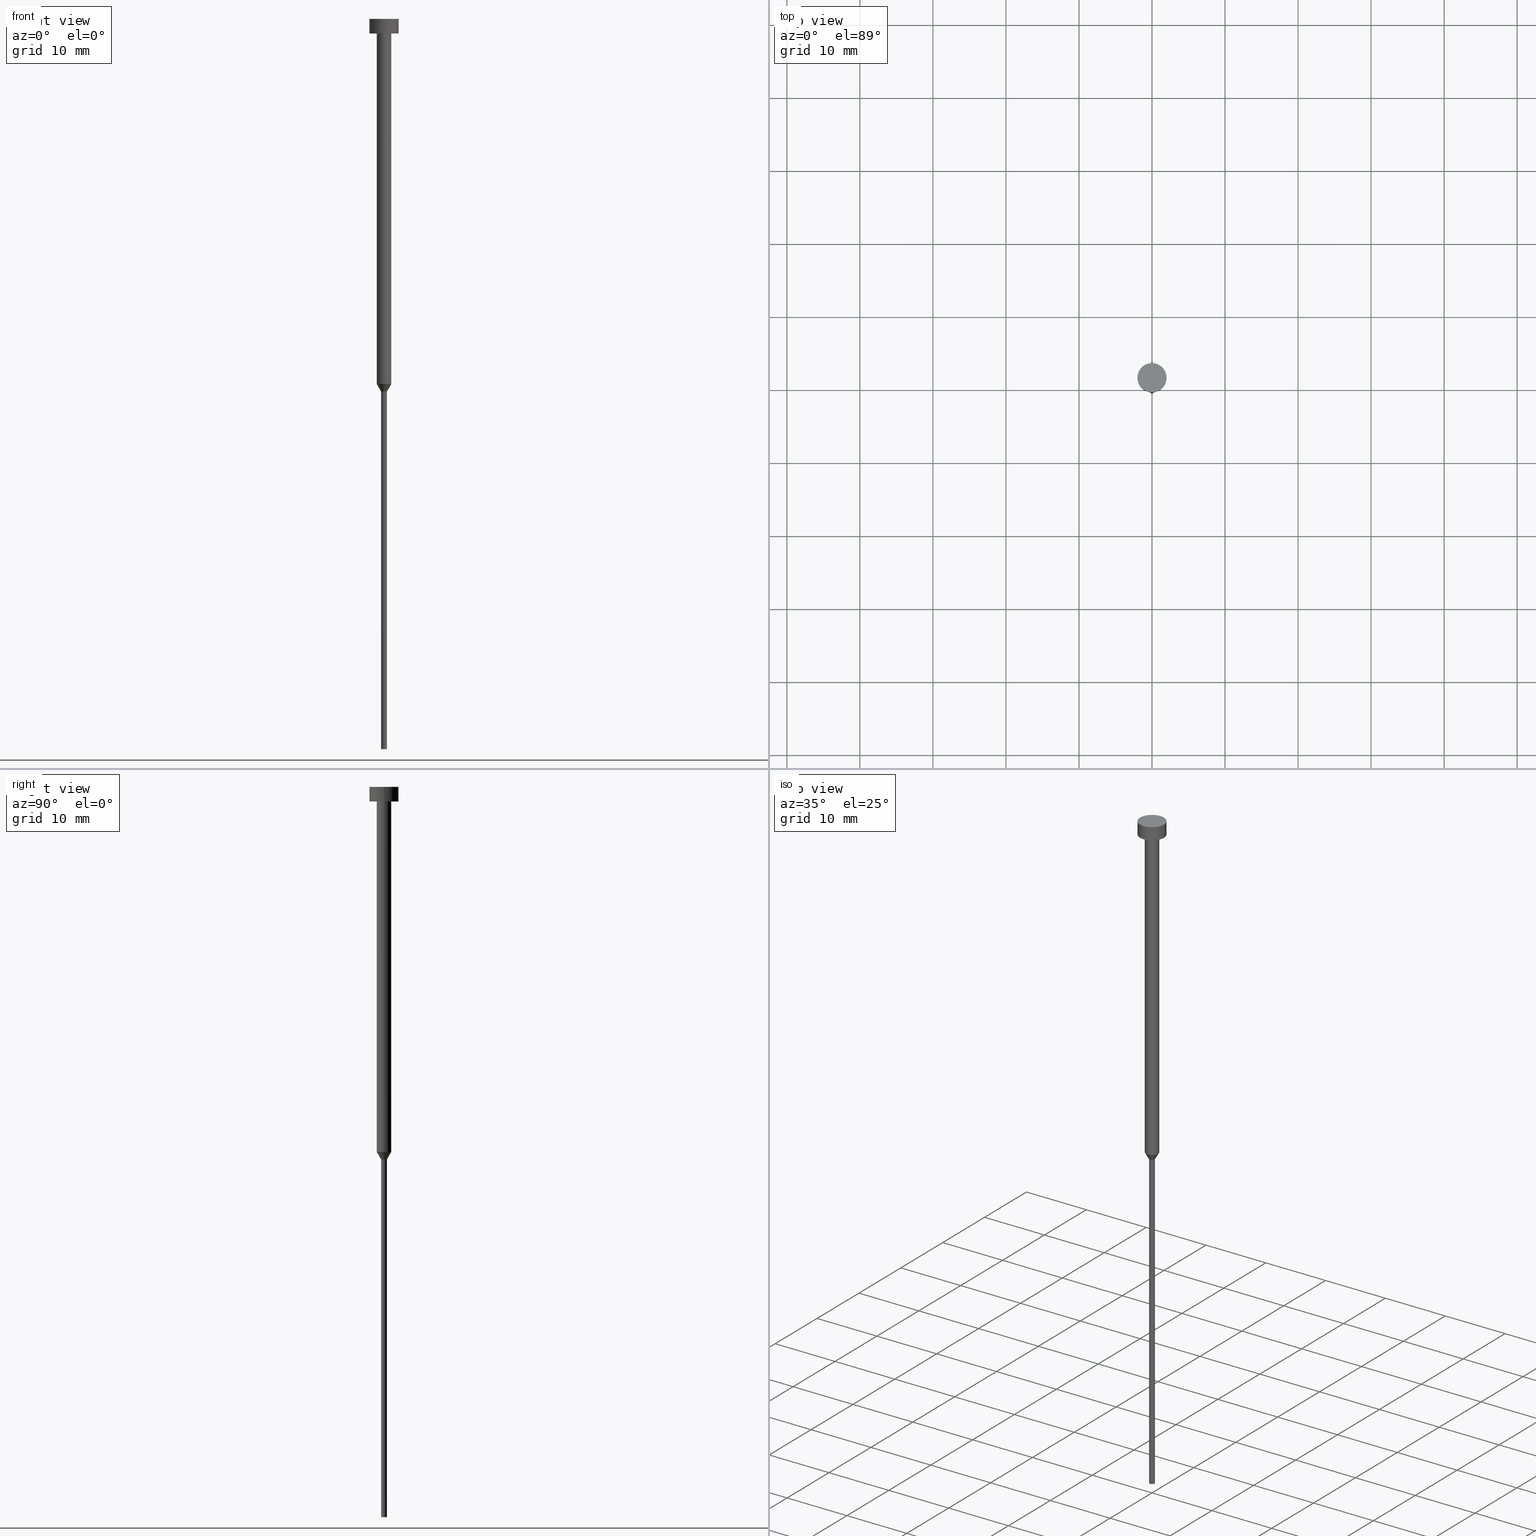
[diagram: canonical four-view strip — front | top / right | iso, engineering-drawing reading convention]
A machine part, canonical four-view strip (front | top / right | iso — engineering-drawing reading convention). The complete STEP part file that produces these views, byte-faithful:
ISO-10303-21;
HEADER;
FILE_DESCRIPTION (( 'STEP AP203' ),
    '1' );
FILE_NAME ('916e.STEP',
    '2025-10-24T08:01:13',
    ( '' ),
    ( '' ),
    'SwSTEP 2.0',
    'SolidWorks 2019',
    '' );
FILE_SCHEMA (( 'CONFIG_CONTROL_DESIGN' ));
ENDSEC;

DATA;
#1 = EDGE_CURVE ( 'NONE', #350, #308, #109, .T. ) ;
#2 = LINE ( 'NONE', #334, #156 ) ;
#3 = CONICAL_SURFACE ( 'NONE', #132, 1.000000000000003109, 0.5235987755983013692 ) ;
#4 = DIRECTION ( 'NONE',  ( 1.000000000000000000, 0.000000000000000000, 0.000000000000000000 ) ) ;
#5 = PERSON_AND_ORGANIZATION_ROLE ( 'design_owner' ) ;
#6 = CARTESIAN_POINT ( 'NONE',  ( 2.000000000000000000, 0.000000000000000000, -2.000000000000000444 ) ) ;
#7 = CC_DESIGN_PERSON_AND_ORGANIZATION_ASSIGNMENT ( #86, #283, ( #342 ) ) ;
#8 = ORIENTED_EDGE ( 'NONE', *, *, #65, .T. ) ;
#9 = PERSON_AND_ORGANIZATION_ROLE ( 'creator' ) ;
#10 = ORIENTED_EDGE ( 'NONE', *, *, #255, .F. ) ;
#11 = CARTESIAN_POINT ( 'NONE',  ( 0.000000000000000000, 0.000000000000000000, 0.000000000000000000 ) ) ;
#12 = DIRECTION ( 'NONE',  ( 0.5000000000000021094, 0.000000000000000000, 0.8660254037844373753 ) ) ;
#13 = ADVANCED_FACE ( 'NONE', ( #190 ), #62, .T. ) ;
#14 = PERSON_AND_ORGANIZATION ( #41, #17 ) ;
#15 = CARTESIAN_POINT ( 'NONE',  ( -2.000000000000000000, 2.449293598294706414E-16, -2.449293598294705921E-16 ) ) ;
#16 = DIRECTION ( 'NONE',  ( 1.000000000000000000, 0.000000000000000000, 0.000000000000000000 ) ) ;
#17 = ORGANIZATION ( 'NEUR�EN�', 'NEUR�EN�', '' ) ;
#18 = EDGE_LOOP ( 'NONE', ( #24, #126, #251, #349 ) ) ;
#19 = EDGE_CURVE ( 'NONE', #308, #204, #194, .T. ) ;
#20 = VERTEX_POINT ( 'NONE', #36 ) ;
#21 = FACE_OUTER_BOUND ( 'NONE', #160, .T. ) ;
#22 = CALENDAR_DATE ( 2025, 24, 10 ) ;
#23 = AXIS2_PLACEMENT_3D ( 'NONE', #195, #226, #147 ) ;
#24 = ORIENTED_EDGE ( 'NONE', *, *, #247, .F. ) ;
#25 = COORDINATED_UNIVERSAL_TIME_OFFSET ( 1, 0, .AHEAD. ) ;
#26 = CARTESIAN_POINT ( 'NONE',  ( 0.000000000000000000, 0.000000000000000000, -100.0000000000000000 ) ) ;
#27 = EDGE_CURVE ( 'NONE', #20, #211, #28, .T. ) ;
#28 = LINE ( 'NONE', #220, #74 ) ;
#29 =( LENGTH_UNIT ( ) NAMED_UNIT ( * ) SI_UNIT ( .MILLI., .METRE. ) );
#30 = CARTESIAN_POINT ( 'NONE',  ( 0.000000000000000000, 0.000000000000000000, -100.0000000000000000 ) ) ;
#31 = DIRECTION ( 'NONE',  ( 0.000000000000000000, 0.000000000000000000, 1.000000000000000000 ) ) ;
#32 = DIRECTION ( 'NONE',  ( -0.000000000000000000, -0.000000000000000000, 1.000000000000000000 ) ) ;
#33 = ORIENTED_EDGE ( 'NONE', *, *, #202, .T. ) ;
#34 = MANIFOLD_SOLID_BREP ( 'Rotovat1', #203 ) ;
#35 = CIRCLE ( 'NONE', #298, 0.3999999999999999667 ) ;
#36 = CARTESIAN_POINT ( 'NONE',  ( -2.000000000000000000, 2.449293598294706414E-16, -2.000000000000000444 ) ) ;
#37 = AXIS2_PLACEMENT_3D ( 'NONE', #312, #281, #60 ) ;
#38 = DIRECTION ( 'NONE',  ( -0.000000000000000000, -0.000000000000000000, 1.000000000000000000 ) ) ;
#39 = APPROVAL_STATUS ( 'not_yet_approved' ) ;
#40 = DIRECTION ( 'NONE',  ( -0.000000000000000000, -0.000000000000000000, 1.000000000000000000 ) ) ;
#41 = PERSON ( 'NEUR�EN�', 'NEUR�EN�', 'NEUR�EN�', ('NEUR�EN�'), ('NEUR�EN�'), ('NEUR�EN�') ) ;
#42 = LINE ( 'NONE', #258, #221 ) ;
#43 = DIRECTION ( 'NONE',  ( -0.000000000000000000, -0.000000000000000000, 1.000000000000000000 ) ) ;
#44 = DESIGN_CONTEXT ( 'detailed design', #46, 'design' ) ;
#45 = CYLINDRICAL_SURFACE ( 'NONE', #114, 2.000000000000000000 ) ;
#46 = APPLICATION_CONTEXT ( 'configuration controlled 3d designs of mechanical parts and assemblies' ) ;
#47 = PRODUCT_DEFINITION_SHAPE ( 'NONE', 'NONE',  #314 ) ;
#48 = PLANE ( 'NONE',  #355 ) ;
#49 = CIRCLE ( 'NONE', #148, 1.000000000000003109 ) ;
#50 = AXIS2_PLACEMENT_3D ( 'NONE', #30, #136, #4 ) ;
#51 = CC_DESIGN_PERSON_AND_ORGANIZATION_ASSIGNMENT ( #137, #5, ( #134 ) ) ;
#52 = ORIENTED_EDGE ( 'NONE', *, *, #83, .T. ) ;
#53 = PERSON_AND_ORGANIZATION ( #41, #17 ) ;
#54 = ORIENTED_EDGE ( 'NONE', *, *, #282, .F. ) ;
#55 = LOCAL_TIME ( 10, 1, 13.00000000000000000, #81 ) ;
#56 = CIRCLE ( 'NONE', #318, 0.4000000000000000222 ) ;
#57 = ADVANCED_FACE ( 'NONE', ( #223 ), #279, .T. ) ;
#58 = CARTESIAN_POINT ( 'NONE',  ( 1.000000000000003109, 0.000000000000000000, -50.00000000000000000 ) ) ;
#59 = CIRCLE ( 'NONE', #128, 1.000000000000003109 ) ;
#60 = DIRECTION ( 'NONE',  ( 1.000000000000000000, 0.000000000000000000, 0.000000000000000000 ) ) ;
#61 = DATE_AND_TIME ( #254, #232 ) ;
#62 = CYLINDRICAL_SURFACE ( 'NONE', #319, 1.000000000000003331 ) ;
#63 = PERSON_AND_ORGANIZATION_ROLE ( 'classification_officer' ) ;
#64 = DIRECTION ( 'NONE',  ( -0.000000000000000000, -0.000000000000000000, 1.000000000000000000 ) ) ;
#65 = EDGE_CURVE ( 'NONE', #124, #204, #192, .T. ) ;
#66 = APPROVAL_ROLE ( '' ) ;
#67 = CARTESIAN_POINT ( 'NONE',  ( 0.000000000000000000, 0.000000000000000000, -1.224646799147352961E-16 ) ) ;
#68 = DIRECTION ( 'NONE',  ( 1.000000000000000000, 0.000000000000000000, 0.000000000000000000 ) ) ;
#69 = EDGE_CURVE ( 'NONE', #129, #353, #2, .T. ) ;
#70 = CARTESIAN_POINT ( 'NONE',  ( 1.000000000000003553, 0.000000000000000000, -2.000000000000000444 ) ) ;
#71 = CIRCLE ( 'NONE', #299, 2.000000000000000000 ) ;
#72 = AXIS2_PLACEMENT_3D ( 'NONE', #67, #295, #268 ) ;
#73 = DIRECTION ( 'NONE',  ( 1.000000000000000000, 0.000000000000000000, 0.000000000000000000 ) ) ;
#74 = VECTOR ( 'NONE', #32, 1000.000000000000000 ) ;
#75 = ORIENTED_EDGE ( 'NONE', *, *, #164, .T. ) ;
#76 = ORIENTED_EDGE ( 'NONE', *, *, #172, .T. ) ;
#77 = CARTESIAN_POINT ( 'NONE',  ( 0.000000000000000000, -2.000000000000000000, -2.000000000000000444 ) ) ;
#78 = APPROVAL_PERSON_ORGANIZATION ( #53, #182, #168 ) ;
#79 = DIRECTION ( 'NONE',  ( 1.000000000000000000, 0.000000000000000000, 0.000000000000000000 ) ) ;
#80 = ORIENTED_EDGE ( 'NONE', *, *, #146, .T. ) ;
#81 = COORDINATED_UNIVERSAL_TIME_OFFSET ( 1, 0, .AHEAD. ) ;
#82 = CARTESIAN_POINT ( 'NONE',  ( -0.3999999999999999667, 4.898587196589412459E-17, -51.03923048454132783 ) ) ;
#83 = EDGE_CURVE ( 'NONE', #124, #350, #59, .T. ) ;
#84 = DIRECTION ( 'NONE',  ( 1.000000000000000000, 0.000000000000000000, 0.000000000000000000 ) ) ;
#85 = DIRECTION ( 'NONE',  ( 1.000000000000000000, 0.000000000000000000, 0.000000000000000000 ) ) ;
#86 = PERSON_AND_ORGANIZATION ( #41, #17 ) ;
#87 = VECTOR ( 'NONE', #64, 1000.000000000000000 ) ;
#88 = DIRECTION ( 'NONE',  ( 1.000000000000000000, 0.000000000000000000, 0.000000000000000000 ) ) ;
#89 = ORIENTED_EDGE ( 'NONE', *, *, #164, .F. ) ;
#90 = ORIENTED_EDGE ( 'NONE', *, *, #335, .T. ) ;
#91 = LOCAL_TIME ( 10, 1, 13.00000000000000000, #278 ) ;
#92 = DIRECTION ( 'NONE',  ( -0.000000000000000000, -0.000000000000000000, 1.000000000000000000 ) ) ;
#93 = CARTESIAN_POINT ( 'NONE',  ( 0.000000000000000000, 0.000000000000000000, -50.00000000000000000 ) ) ;
#94 = CARTESIAN_POINT ( 'NONE',  ( 0.000000000000000000, 0.000000000000000000, -2.449293598294705921E-16 ) ) ;
#95 = LOCAL_TIME ( 10, 1, 13.00000000000000000, #25 ) ;
#96 = CYLINDRICAL_SURFACE ( 'NONE', #252, 0.3999999999999999667 ) ;
#97 = AXIS2_PLACEMENT_3D ( 'NONE', #277, #139, #249 ) ;
#98 = ORIENTED_EDGE ( 'NONE', *, *, #242, .T. ) ;
#99 = CC_DESIGN_DATE_AND_TIME_ASSIGNMENT ( #224, #250, ( #316 ) ) ;
#100 = EDGE_LOOP ( 'NONE', ( #98, #196 ) ) ;
#101 = AXIS2_PLACEMENT_3D ( 'NONE', #265, #150, #256 ) ;
#102 = CYLINDRICAL_SURFACE ( 'NONE', #208, 0.3999999999999999667 ) ;
#103 = CIRCLE ( 'NONE', #97, 0.3999999999999999667 ) ;
#104 = VERTEX_POINT ( 'NONE', #303 ) ;
#105 = APPROVAL_DATE_TIME ( #330, #348 ) ;
#106 = DIRECTION ( 'NONE',  ( 0.000000000000000000, 0.000000000000000000, -1.000000000000000000 ) ) ;
#107 = APPLICATION_PROTOCOL_DEFINITION ( 'international standard', 'config_control_design', 1994, #46 ) ;
#108 = VERTEX_POINT ( 'NONE', #82 ) ;
#109 = LINE ( 'NONE', #141, #291 ) ;
#110 = APPROVAL_STATUS ( 'not_yet_approved' ) ;
#111 = CC_DESIGN_APPROVAL ( #182, ( #342 ) ) ;
#112 = ORIENTED_EDGE ( 'NONE', *, *, #83, .F. ) ;
#113 = DATE_AND_TIME ( #171, #91 ) ;
#114 = AXIS2_PLACEMENT_3D ( 'NONE', #207, #201, #152 ) ;
#115 = ORIENTED_EDGE ( 'NONE', *, *, #135, .F. ) ;
#116 = ORIENTED_EDGE ( 'NONE', *, *, #65, .F. ) ;
#117 = CARTESIAN_POINT ( 'NONE',  ( -0.4000000000000000777, 4.898587196589413692E-17, -100.0000000000000000 ) ) ;
#118 = CC_DESIGN_APPROVAL ( #206, ( #316 ) ) ;
#119 = CARTESIAN_POINT ( 'NONE',  ( 0.000000000000000000, 0.000000000000000000, -100.0000000000000000 ) ) ;
#120 = FACE_OUTER_BOUND ( 'NONE', #218, .T. ) ;
#121 = DIRECTION ( 'NONE',  ( -0.000000000000000000, -0.000000000000000000, 1.000000000000000000 ) ) ;
#122 = EDGE_CURVE ( 'NONE', #244, #292, #339, .T. ) ;
#123 = ORIENTED_EDGE ( 'NONE', *, *, #351, .F. ) ;
#124 = VERTEX_POINT ( 'NONE', #58 ) ;
#125 = DIRECTION ( 'NONE',  ( 1.000000000000000000, 0.000000000000000000, 0.000000000000000000 ) ) ;
#126 = ORIENTED_EDGE ( 'NONE', *, *, #177, .T. ) ;
#127 = EDGE_CURVE ( 'NONE', #104, #108, #103, .T. ) ;
#128 = AXIS2_PLACEMENT_3D ( 'NONE', #338, #307, #88 ) ;
#129 = VERTEX_POINT ( 'NONE', #6 ) ;
#130 = CALENDAR_DATE ( 2025, 24, 10 ) ;
#131 = DIRECTION ( 'NONE',  ( -1.000000000000000000, 0.000000000000000000, -0.000000000000000000 ) ) ;
#132 = AXIS2_PLACEMENT_3D ( 'NONE', #93, #286, #175 ) ;
#133 = DIRECTION ( 'NONE',  ( 1.000000000000000000, 0.000000000000000000, 0.000000000000000000 ) ) ;
#134 = PRODUCT ( '916e', '916e', '', ( #191 ) ) ;
#135 = EDGE_CURVE ( 'NONE', #211, #353, #176, .T. ) ;
#136 = DIRECTION ( 'NONE',  ( -0.000000000000000000, -0.000000000000000000, 1.000000000000000000 ) ) ;
#137 = PERSON_AND_ORGANIZATION ( #41, #17 ) ;
#138 = APPLICATION_CONTEXT ( 'configuration controlled 3d designs of mechanical parts and assemblies' ) ;
#139 = DIRECTION ( 'NONE',  ( -0.000000000000000000, -0.000000000000000000, 1.000000000000000000 ) ) ;
#140 = LOCAL_TIME ( 10, 1, 13.00000000000000000, #219 ) ;
#141 = CARTESIAN_POINT ( 'NONE',  ( -1.000000000000003331, 1.224646799147357151E-16, 0.000000000000000000 ) ) ;
#142 = VECTOR ( 'NONE', #317, 1000.000000000000227 ) ;
#143 = EDGE_LOOP ( 'NONE', ( #154, #76, #8, #310 ) ) ;
#144 = CYLINDRICAL_SURFACE ( 'NONE', #166, 1.000000000000003331 ) ;
#145 = APPROVAL_DATE_TIME ( #113, #182 ) ;
#146 = EDGE_CURVE ( 'NONE', #104, #124, #42, .T. ) ;
#147 = DIRECTION ( 'NONE',  ( 1.000000000000000000, 0.000000000000000000, 0.000000000000000000 ) ) ;
#148 = AXIS2_PLACEMENT_3D ( 'NONE', #288, #40, #343 ) ;
#149 = FACE_OUTER_BOUND ( 'NONE', #300, .T. ) ;
#150 = DIRECTION ( 'NONE',  ( -0.000000000000000000, -0.000000000000000000, 1.000000000000000000 ) ) ;
#151 = CC_DESIGN_DATE_AND_TIME_ASSIGNMENT ( #241, #302, ( #314 ) ) ;
#152 = DIRECTION ( 'NONE',  ( 1.000000000000000000, 0.000000000000000000, 0.000000000000000000 ) ) ;
#153 = ORIENTED_EDGE ( 'NONE', *, *, #127, .F. ) ;
#154 = ORIENTED_EDGE ( 'NONE', *, *, #1, .F. ) ;
#155 = PERSON_AND_ORGANIZATION ( #41, #17 ) ;
#156 = VECTOR ( 'NONE', #216, 1000.000000000000000 ) ;
#157 =( NAMED_UNIT ( * ) SI_UNIT ( $, .STERADIAN. ) SOLID_ANGLE_UNIT ( ) );
#158 = CARTESIAN_POINT ( 'NONE',  ( 1.000000000000003331, 0.000000000000000000, 0.000000000000000000 ) ) ;
#159 = ADVANCED_FACE ( 'NONE', ( #21 ), #45, .T. ) ;
#160 = EDGE_LOOP ( 'NONE', ( #75, #326, #297, #222 ) ) ;
#161 = VECTOR ( 'NONE', #272, 1000.000000000000000 ) ;
#162 = ORIENTED_EDGE ( 'NONE', *, *, #27, .F. ) ;
#163 = DIRECTION ( 'NONE',  ( -0.000000000000000000, -0.000000000000000000, 1.000000000000000000 ) ) ;
#164 = EDGE_CURVE ( 'NONE', #129, #20, #71, .T. ) ;
#165 = PERSON_AND_ORGANIZATION ( #41, #17 ) ;
#166 = AXIS2_PLACEMENT_3D ( 'NONE', #11, #92, #68 ) ;
#167 = EDGE_LOOP ( 'NONE', ( #234, #33, #112, #183 ) ) ;
#168 = APPROVAL_ROLE ( '' ) ;
#169 = DIRECTION ( 'NONE',  ( -0.000000000000000000, -0.000000000000000000, 1.000000000000000000 ) ) ;
#170 = DIRECTION ( 'NONE',  ( 1.000000000000000000, 0.000000000000000000, 0.000000000000000000 ) ) ;
#171 = CALENDAR_DATE ( 2025, 24, 10 ) ;
#172 = EDGE_CURVE ( 'NONE', #350, #124, #49, .T. ) ;
#173 = FACE_OUTER_BOUND ( 'NONE', #100, .T. ) ;
#174 = AXIS2_PLACEMENT_3D ( 'NONE', #315, #38, #284 ) ;
#175 = DIRECTION ( 'NONE',  ( 1.000000000000000000, 0.000000000000000000, 0.000000000000000000 ) ) ;
#176 = CIRCLE ( 'NONE', #23, 2.000000000000000000 ) ;
#177 = EDGE_CURVE ( 'NONE', #292, #244, #56, .T. ) ;
#178 = CIRCLE ( 'NONE', #174, 2.000000000000000000 ) ;
#179 = ORIENTED_EDGE ( 'NONE', *, *, #19, .T. ) ;
#180 = ADVANCED_BREP_SHAPE_REPRESENTATION ( '916e', ( #34, #346 ), #322 ) ;
#181 = LINE ( 'NONE', #293, #287 ) ;
#182 = APPROVAL ( #354, 'NEUR�EN�' ) ;
#183 = ORIENTED_EDGE ( 'NONE', *, *, #146, .F. ) ;
#184 =( NAMED_UNIT ( * ) PLANE_ANGLE_UNIT ( ) SI_UNIT ( $, .RADIAN. ) );
#185 = ORIENTED_EDGE ( 'NONE', *, *, #172, .F. ) ;
#186 = AXIS2_PLACEMENT_3D ( 'NONE', #77, #214, #331 ) ;
#187 = CARTESIAN_POINT ( 'NONE',  ( 2.000000000000000000, 0.000000000000000000, -2.449293598294705921E-16 ) ) ;
#188 = ADVANCED_FACE ( 'NONE', ( #149 ), #96, .T. ) ;
#189 = PERSON_AND_ORGANIZATION ( #41, #17 ) ;
#190 = FACE_OUTER_BOUND ( 'NONE', #143, .T. ) ;
#191 = MECHANICAL_CONTEXT ( 'NONE', #138, 'mechanical' ) ;
#192 = LINE ( 'NONE', #158, #161 ) ;
#193 = SHAPE_DEFINITION_REPRESENTATION ( #47, #180 ) ;
#194 = CIRCLE ( 'NONE', #37, 1.000000000000003553 ) ;
#195 = CARTESIAN_POINT ( 'NONE',  ( 0.000000000000000000, 0.000000000000000000, -2.449293598294705921E-16 ) ) ;
#196 = ORIENTED_EDGE ( 'NONE', *, *, #135, .T. ) ;
#197 = CARTESIAN_POINT ( 'NONE',  ( 0.000000000000000000, 0.000000000000000000, 0.000000000000000000 ) ) ;
#198 = SECURITY_CLASSIFICATION_LEVEL ( 'unclassified' ) ;
#199 = FACE_OUTER_BOUND ( 'NONE', #18, .T. ) ;
#200 = CARTESIAN_POINT ( 'NONE',  ( -1.000000000000003109, 1.224646799147356905E-16, -50.00000000000000000 ) ) ;
#201 = DIRECTION ( 'NONE',  ( -0.000000000000000000, -0.000000000000000000, 1.000000000000000000 ) ) ;
#202 = EDGE_CURVE ( 'NONE', #108, #350, #345, .T. ) ;
#203 = CLOSED_SHELL ( 'NONE', ( #159, #290, #274, #188, #311, #227, #235, #13, #328, #57, #305 ) ) ;
#204 = VERTEX_POINT ( 'NONE', #70 ) ;
#205 = AXIS2_PLACEMENT_3D ( 'NONE', #276, #245, #79 ) ;
#206 = APPROVAL ( #39, 'NEUR�EN�' ) ;
#207 = CARTESIAN_POINT ( 'NONE',  ( 0.000000000000000000, 0.000000000000000000, 0.000000000000000000 ) ) ;
#208 = AXIS2_PLACEMENT_3D ( 'NONE', #231, #285, #16 ) ;
#209 = ORIENTED_EDGE ( 'NONE', *, *, #122, .F. ) ;
#210 = CARTESIAN_POINT ( 'NONE',  ( 0.4000000000000000222, 0.000000000000000000, -100.0000000000000000 ) ) ;
#211 = VERTEX_POINT ( 'NONE', #15 ) ;
#212 = PERSON_AND_ORGANIZATION_ROLE ( 'creator' ) ;
#213 = APPROVAL_PERSON_ORGANIZATION ( #165, #206, #66 ) ;
#214 = DIRECTION ( 'NONE',  ( 0.000000000000000000, 0.000000000000000000, -1.000000000000000000 ) ) ;
#215 = CC_DESIGN_PERSON_AND_ORGANIZATION_ASSIGNMENT ( #189, #212, ( #314 ) ) ;
#216 = DIRECTION ( 'NONE',  ( -0.000000000000000000, -0.000000000000000000, 1.000000000000000000 ) ) ;
#217 = APPLICATION_PROTOCOL_DEFINITION ( 'international standard', 'config_control_design', 1994, #138 ) ;
#218 = EDGE_LOOP ( 'NONE', ( #233, #90, #80, #185 ) ) ;
#219 = COORDINATED_UNIVERSAL_TIME_OFFSET ( 1, 0, .AHEAD. ) ;
#220 = CARTESIAN_POINT ( 'NONE',  ( -2.000000000000000000, 2.449293598294706414E-16, 0.000000000000000000 ) ) ;
#221 = VECTOR ( 'NONE', #12, 1000.000000000000227 ) ;
#222 = ORIENTED_EDGE ( 'NONE', *, *, #69, .F. ) ;
#223 = FACE_OUTER_BOUND ( 'NONE', #275, .T. ) ;
#224 = DATE_AND_TIME ( #228, #140 ) ;
#225 = APPROVAL_PERSON_ORGANIZATION ( #155, #348, #333 ) ;
#226 = DIRECTION ( 'NONE',  ( -0.000000000000000000, -0.000000000000000000, 1.000000000000000000 ) ) ;
#227 = ADVANCED_FACE ( 'NONE', ( #199 ), #102, .T. ) ;
#228 = CALENDAR_DATE ( 2025, 24, 10 ) ;
#229 = DIRECTION ( 'NONE',  ( -0.000000000000000000, -0.000000000000000000, 1.000000000000000000 ) ) ;
#230 = DIRECTION ( 'NONE',  ( 1.000000000000000000, 0.000000000000000000, 0.000000000000000000 ) ) ;
#231 = CARTESIAN_POINT ( 'NONE',  ( 0.000000000000000000, 0.000000000000000000, 0.000000000000000000 ) ) ;
#232 = LOCAL_TIME ( 10, 1, 13.00000000000000000, #309 ) ;
#233 = ORIENTED_EDGE ( 'NONE', *, *, #202, .F. ) ;
#234 = ORIENTED_EDGE ( 'NONE', *, *, #127, .T. ) ;
#235 = ADVANCED_FACE ( 'NONE', ( #120 ), #259, .T. ) ;
#236 = CARTESIAN_POINT ( 'NONE',  ( 0.3999999999999999667, 0.000000000000000000, 0.000000000000000000 ) ) ;
#237 = EDGE_LOOP ( 'NONE', ( #89, #54 ) ) ;
#238 = AXIS2_PLACEMENT_3D ( 'NONE', #341, #246, #133 ) ;
#239 = CARTESIAN_POINT ( 'NONE',  ( 0.000000000000000000, 0.000000000000000000, 0.000000000000000000 ) ) ;
#240 = ORIENTED_EDGE ( 'NONE', *, *, #351, .T. ) ;
#241 = DATE_AND_TIME ( #130, #95 ) ;
#242 = EDGE_CURVE ( 'NONE', #353, #211, #324, .T. ) ;
#243 = PLANE ( 'NONE',  #186 ) ;
#244 = VERTEX_POINT ( 'NONE', #210 ) ;
#245 = DIRECTION ( 'NONE',  ( -0.000000000000000000, -0.000000000000000000, 1.000000000000000000 ) ) ;
#246 = DIRECTION ( 'NONE',  ( -0.000000000000000000, -0.000000000000000000, 1.000000000000000000 ) ) ;
#247 = EDGE_CURVE ( 'NONE', #292, #108, #181, .T. ) ;
#248 = CARTESIAN_POINT ( 'NONE',  ( -1.000000000000003109, 1.224646799147356905E-16, -50.00000000000000000 ) ) ;
#249 = DIRECTION ( 'NONE',  ( 1.000000000000000000, 0.000000000000000000, 0.000000000000000000 ) ) ;
#250 = DATE_TIME_ROLE ( 'classification_date' ) ;
#251 = ORIENTED_EDGE ( 'NONE', *, *, #255, .T. ) ;
#252 = AXIS2_PLACEMENT_3D ( 'NONE', #261, #43, #73 ) ;
#253 = EDGE_LOOP ( 'NONE', ( #209, #263 ) ) ;
#254 = CALENDAR_DATE ( 2025, 24, 10 ) ;
#255 = EDGE_CURVE ( 'NONE', #244, #104, #344, .T. ) ;
#256 = DIRECTION ( 'NONE',  ( 1.000000000000000000, 0.000000000000000000, 0.000000000000000000 ) ) ;
#257 = APPROVAL_DATE_TIME ( #61, #206 ) ;
#258 = CARTESIAN_POINT ( 'NONE',  ( 1.000000000000003109, 0.000000000000000000, -50.00000000000000000 ) ) ;
#259 = CONICAL_SURFACE ( 'NONE', #101, 1.000000000000003109, 0.5235987755983013692 ) ;
#260 = PERSON_AND_ORGANIZATION ( #41, #17 ) ;
#261 = CARTESIAN_POINT ( 'NONE',  ( 0.000000000000000000, 0.000000000000000000, 0.000000000000000000 ) ) ;
#262 = FACE_OUTER_BOUND ( 'NONE', #167, .T. ) ;
#263 = ORIENTED_EDGE ( 'NONE', *, *, #177, .F. ) ;
#264 = PRODUCT_RELATED_PRODUCT_CATEGORY ( 'detail', '', ( #134 ) ) ;
#265 = CARTESIAN_POINT ( 'NONE',  ( 0.000000000000000000, 0.000000000000000000, -50.00000000000000000 ) ) ;
#266 = ORIENTED_EDGE ( 'NONE', *, *, #282, .T. ) ;
#267 = CC_DESIGN_APPROVAL ( #348, ( #314 ) ) ;
#268 = DIRECTION ( 'NONE',  ( 1.000000000000000000, 0.000000000000000000, 0.000000000000000000 ) ) ;
#269 = ORIENTED_EDGE ( 'NONE', *, *, #1, .T. ) ;
#270 = CARTESIAN_POINT ( 'NONE',  ( 0.000000000000000000, 0.000000000000000000, -51.03923048454132783 ) ) ;
#271 = FACE_OUTER_BOUND ( 'NONE', #237, .T. ) ;
#272 = DIRECTION ( 'NONE',  ( -0.000000000000000000, -0.000000000000000000, 1.000000000000000000 ) ) ;
#273 = FACE_BOUND ( 'NONE', #294, .T. ) ;
#274 = ADVANCED_FACE ( 'NONE', ( #262 ), #3, .T. ) ;
#275 = EDGE_LOOP ( 'NONE', ( #162, #266, #329, #115 ) ) ;
#276 = CARTESIAN_POINT ( 'NONE',  ( 0.000000000000000000, 0.000000000000000000, -2.000000000000000444 ) ) ;
#277 = CARTESIAN_POINT ( 'NONE',  ( 0.000000000000000000, 0.000000000000000000, -51.03923048454132783 ) ) ;
#278 = COORDINATED_UNIVERSAL_TIME_OFFSET ( 1, 0, .AHEAD. ) ;
#279 = CYLINDRICAL_SURFACE ( 'NONE', #238, 2.000000000000000000 ) ;
#280 = CC_DESIGN_SECURITY_CLASSIFICATION ( #316, ( #342 ) ) ;
#281 = DIRECTION ( 'NONE',  ( -0.000000000000000000, -0.000000000000000000, 1.000000000000000000 ) ) ;
#282 = EDGE_CURVE ( 'NONE', #20, #129, #178, .T. ) ;
#283 = PERSON_AND_ORGANIZATION_ROLE ( 'design_supplier' ) ;
#284 = DIRECTION ( 'NONE',  ( 1.000000000000000000, 0.000000000000000000, 0.000000000000000000 ) ) ;
#285 = DIRECTION ( 'NONE',  ( -0.000000000000000000, -0.000000000000000000, 1.000000000000000000 ) ) ;
#286 = DIRECTION ( 'NONE',  ( -0.000000000000000000, -0.000000000000000000, 1.000000000000000000 ) ) ;
#287 = VECTOR ( 'NONE', #229, 1000.000000000000000 ) ;
#288 = CARTESIAN_POINT ( 'NONE',  ( 0.000000000000000000, 0.000000000000000000, -50.00000000000000000 ) ) ;
#289 = CIRCLE ( 'NONE', #205, 1.000000000000003553 ) ;
#290 = ADVANCED_FACE ( 'NONE', ( #347 ), #144, .T. ) ;
#291 = VECTOR ( 'NONE', #163, 1000.000000000000000 ) ;
#292 = VERTEX_POINT ( 'NONE', #117 ) ;
#293 = CARTESIAN_POINT ( 'NONE',  ( -0.3999999999999999667, 4.898587196589412459E-17, 0.000000000000000000 ) ) ;
#294 = EDGE_LOOP ( 'NONE', ( #240, #179 ) ) ;
#295 = DIRECTION ( 'NONE',  ( 0.000000000000000000, -0.000000000000000000, 1.000000000000000000 ) ) ;
#296 = CC_DESIGN_PERSON_AND_ORGANIZATION_ASSIGNMENT ( #260, #63, ( #316 ) ) ;
#297 = ORIENTED_EDGE ( 'NONE', *, *, #242, .F. ) ;
#298 = AXIS2_PLACEMENT_3D ( 'NONE', #270, #327, #84 ) ;
#299 = AXIS2_PLACEMENT_3D ( 'NONE', #352, #121, #170 ) ;
#300 = EDGE_LOOP ( 'NONE', ( #340, #332, #153, #10 ) ) ;
#301 = CARTESIAN_POINT ( 'NONE',  ( -1.000000000000003553, 1.224646799147357398E-16, -2.000000000000000444 ) ) ;
#302 = DATE_TIME_ROLE ( 'creation_date' ) ;
#303 = CARTESIAN_POINT ( 'NONE',  ( 0.3999999999999999667, 0.000000000000000000, -51.03923048454132783 ) ) ;
#304 = DIRECTION ( 'NONE',  ( 1.000000000000000000, 0.000000000000000000, 0.000000000000000000 ) ) ;
#305 = ADVANCED_FACE ( 'NONE', ( #173 ), #325, .T. ) ;
#306 = AXIS2_PLACEMENT_3D ( 'NONE', #94, #313, #125 ) ;
#307 = DIRECTION ( 'NONE',  ( -0.000000000000000000, -0.000000000000000000, 1.000000000000000000 ) ) ;
#308 = VERTEX_POINT ( 'NONE', #301 ) ;
#309 = COORDINATED_UNIVERSAL_TIME_OFFSET ( 1, 0, .AHEAD. ) ;
#310 = ORIENTED_EDGE ( 'NONE', *, *, #19, .F. ) ;
#311 = ADVANCED_FACE ( 'NONE', ( #336 ), #48, .T. ) ;
#312 = CARTESIAN_POINT ( 'NONE',  ( 0.000000000000000000, 0.000000000000000000, -2.000000000000000444 ) ) ;
#313 = DIRECTION ( 'NONE',  ( -0.000000000000000000, -0.000000000000000000, 1.000000000000000000 ) ) ;
#314 = PRODUCT_DEFINITION ( 'NEZN�M�', '', #342, #44 ) ;
#315 = CARTESIAN_POINT ( 'NONE',  ( 0.000000000000000000, 0.000000000000000000, -2.000000000000000444 ) ) ;
#316 = SECURITY_CLASSIFICATION ( '', '', #198 ) ;
#317 = DIRECTION ( 'NONE',  ( -0.5000000000000021094, 6.123233995736791920E-17, 0.8660254037844373753 ) ) ;
#318 = AXIS2_PLACEMENT_3D ( 'NONE', #119, #169, #230 ) ;
#319 = AXIS2_PLACEMENT_3D ( 'NONE', #197, #337, #85 ) ;
#320 = CC_DESIGN_PERSON_AND_ORGANIZATION_ASSIGNMENT ( #14, #9, ( #342 ) ) ;
#321 = UNCERTAINTY_MEASURE_WITH_UNIT (LENGTH_MEASURE( 1.000000000000000082E-05 ), #29, 'distance_accuracy_value', 'NONE');
#322 =( GEOMETRIC_REPRESENTATION_CONTEXT ( 3 ) GLOBAL_UNCERTAINTY_ASSIGNED_CONTEXT ( ( #321 ) ) GLOBAL_UNIT_ASSIGNED_CONTEXT ( ( #29, #184, #157 ) ) REPRESENTATION_CONTEXT ( 'NONE', 'WORKASPACE' ) );
#323 = EDGE_LOOP ( 'NONE', ( #52, #269, #123, #116 ) ) ;
#324 = CIRCLE ( 'NONE', #306, 2.000000000000000000 ) ;
#325 = PLANE ( 'NONE',  #72 ) ;
#326 = ORIENTED_EDGE ( 'NONE', *, *, #27, .T. ) ;
#327 = DIRECTION ( 'NONE',  ( -0.000000000000000000, -0.000000000000000000, 1.000000000000000000 ) ) ;
#328 = ADVANCED_FACE ( 'NONE', ( #273, #271 ), #243, .T. ) ;
#329 = ORIENTED_EDGE ( 'NONE', *, *, #69, .T. ) ;
#330 = DATE_AND_TIME ( #22, #55 ) ;
#331 = DIRECTION ( 'NONE',  ( -1.000000000000000000, 0.000000000000000000, -0.000000000000000000 ) ) ;
#332 = ORIENTED_EDGE ( 'NONE', *, *, #247, .T. ) ;
#333 = APPROVAL_ROLE ( '' ) ;
#334 = CARTESIAN_POINT ( 'NONE',  ( 2.000000000000000000, 0.000000000000000000, 0.000000000000000000 ) ) ;
#335 = EDGE_CURVE ( 'NONE', #108, #104, #35, .T. ) ;
#336 = FACE_OUTER_BOUND ( 'NONE', #253, .T. ) ;
#337 = DIRECTION ( 'NONE',  ( -0.000000000000000000, -0.000000000000000000, 1.000000000000000000 ) ) ;
#338 = CARTESIAN_POINT ( 'NONE',  ( 0.000000000000000000, 0.000000000000000000, -50.00000000000000000 ) ) ;
#339 = CIRCLE ( 'NONE', #50, 0.4000000000000000222 ) ;
#340 = ORIENTED_EDGE ( 'NONE', *, *, #122, .T. ) ;
#341 = CARTESIAN_POINT ( 'NONE',  ( 0.000000000000000000, 0.000000000000000000, 0.000000000000000000 ) ) ;
#342 = PRODUCT_DEFINITION_FORMATION_WITH_SPECIFIED_SOURCE ( 'LIBOVOLN�', '', #134, .NOT_KNOWN. ) ;
#343 = DIRECTION ( 'NONE',  ( 1.000000000000000000, 0.000000000000000000, 0.000000000000000000 ) ) ;
#344 = LINE ( 'NONE', #236, #87 ) ;
#345 = LINE ( 'NONE', #200, #142 ) ;
#346 = AXIS2_PLACEMENT_3D ( 'NONE', #239, #31, #304 ) ;
#347 = FACE_OUTER_BOUND ( 'NONE', #323, .T. ) ;
#348 = APPROVAL ( #110, 'NEUR�EN�' ) ;
#349 = ORIENTED_EDGE ( 'NONE', *, *, #335, .F. ) ;
#350 = VERTEX_POINT ( 'NONE', #248 ) ;
#351 = EDGE_CURVE ( 'NONE', #204, #308, #289, .T. ) ;
#352 = CARTESIAN_POINT ( 'NONE',  ( 0.000000000000000000, 0.000000000000000000, -2.000000000000000444 ) ) ;
#353 = VERTEX_POINT ( 'NONE', #187 ) ;
#354 = APPROVAL_STATUS ( 'not_yet_approved' ) ;
#355 = AXIS2_PLACEMENT_3D ( 'NONE', #26, #106, #131 ) ;
ENDSEC;
END-ISO-10303-21;
